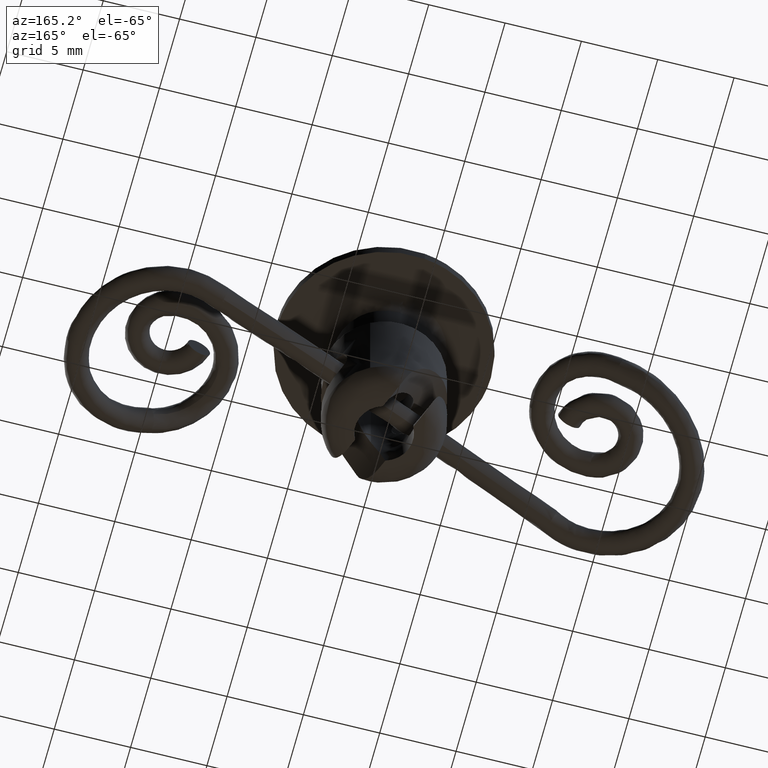
[diagram: clean part render]
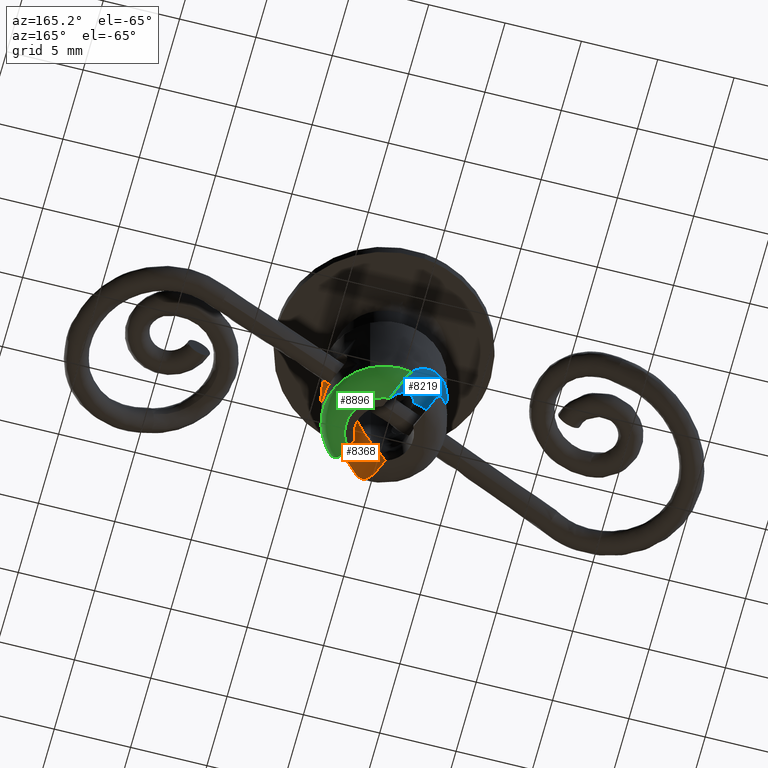
[diagram: same view with three faces highlighted in distinct colors, each labeled with its STEP entity id]
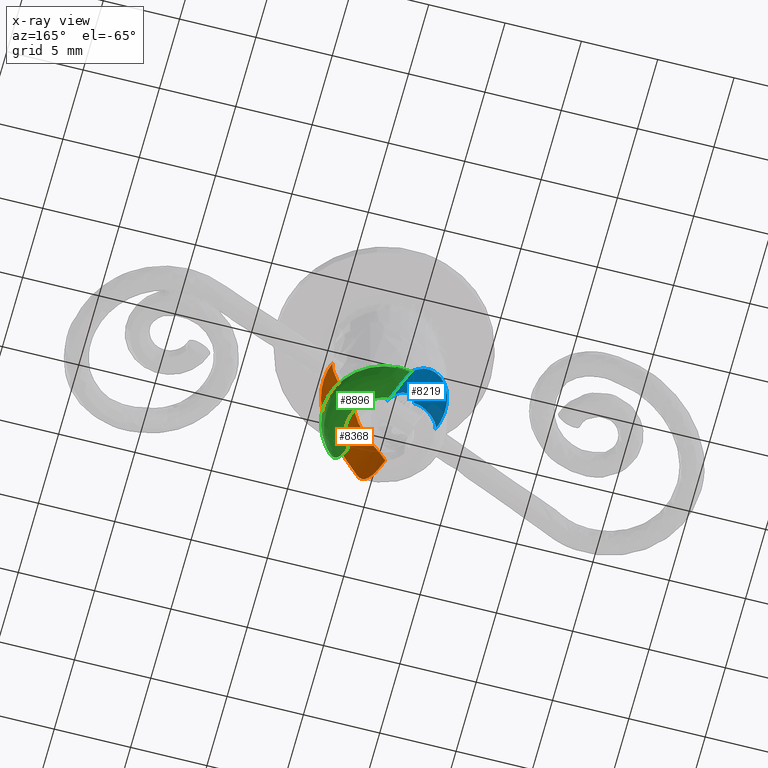
[diagram: x-ray of the same camera — body ghosted, the three highlighted faces saturated]
A machine part, auxiliary view with three faces highlighted in distinct colors.
The next image is the same camera in x-ray (body ghosted, the three faces saturated) — at least one of them is partly hidden behind the body in this view.
Their STEP definitions:

[orange] entity #8368 — the highlighted face is a freeform B-spline surface patch.
#6632=CARTESIAN_POINT('',(1.815549475939585,-0.560194706663198,0.320780988121058));
#6633=VERTEX_POINT('',#6632);
#6703=CARTESIAN_POINT('',(0.373404615151968,-1.862952903262541,-1.750947063984357));
#6704=VERTEX_POINT('',#6703);
#6705=CARTESIAN_POINT('',(0.373404615151968,-1.862952903262541,-1.750947063984357));
#6706=CARTESIAN_POINT('',(0.410200934372174,-1.855576477500964,-1.687561067883076));
#6707=CARTESIAN_POINT('',(0.447575255454538,-1.846951980060489,-1.624701134180892));
#6708=CARTESIAN_POINT('',(0.602233836290562,-1.806089019188280,-1.370353794984219));
#6709=CARTESIAN_POINT('',(0.723570279348594,-1.762281326212640,-1.184143658688647));
#6710=CARTESIAN_POINT('',(0.878421437886864,-1.685113295181263,-0.958845868583563));
#6711=CARTESIAN_POINT('',(0.909547453076765,-1.668547470391175,-0.914160319008975));
#6712=CARTESIAN_POINT('',(0.972033407115969,-1.632935699923791,-0.825539447999178));
#6713=CARTESIAN_POINT('',(1.003402691539201,-1.613876566399230,-0.781594082970423));
#6714=CARTESIAN_POINT('',(1.096858801722067,-1.553207821660352,-0.652074467764540));
#6715=CARTESIAN_POINT('',(1.158578830394650,-1.507969564234907,-0.568418792802705));
#6716=CARTESIAN_POINT('',(1.279757046826916,-1.406591642792462,-0.406532251312372));
#6717=CARTESIAN_POINT('',(1.339222189522544,-1.350461756500014,-0.328300192015638));
#6718=CARTESIAN_POINT('',(1.425650675667008,-1.256727913099598,-0.215109905519555));
#6719=CARTESIAN_POINT('',(1.453995360626599,-1.223888654347709,-0.178073474003708));
#6720=CARTESIAN_POINT('',(1.509519414778674,-1.154710921400465,-0.105414381891269));
#6721=CARTESIAN_POINT('',(1.536470144465346,-1.118646997013288,-0.070089518669324));
#6722=CARTESIAN_POINT('',(1.614187944442423,-1.006343106560047,0.032427730101275));
#6723=CARTESIAN_POINT('',(1.662005801738604,-0.925815268724424,0.096381491418650));
#6724=CARTESIAN_POINT('',(1.726082184871686,-0.795624758479897,0.185764113527868));
#6725=CARTESIAN_POINT('',(1.746160497700477,-0.750656739812167,0.214464845158779));
#6726=CARTESIAN_POINT('',(1.783384238724337,-0.657344907425173,0.269650137344403));
#6727=CARTESIAN_POINT('',(1.800449779252641,-0.609131938575875,0.296031945968916));
#6728=CARTESIAN_POINT('',(1.815549475939585,-0.560194706663198,0.320780988121058));
#6729=B_SPLINE_CURVE_WITH_KNOTS('',3,(#6705,#6706,#6707,#6708,#6709,#6710,#6711,#6712,#6713,#6714,#6715,#6716,#6717,#6718,#6719,#6720,#6721,#6722,#6723,#6724,#6725,#6726,#6727,#6728),.UNSPECIFIED.,.F.,.U.,(4,2,2,2,2,2,2,2,2,2,2,4),(0.459587832967357,0.500000000000000,0.625000000000000,0.656250000000000,0.687500000000000,0.750000000000000,0.812500000000000,0.843750000000000,0.875000000000000,0.937500000000000,0.968750000000000,1.0),.UNSPECIFIED.);
#6730=EDGE_CURVE('',#6704,#6633,#6729,.T.);
#6852=CARTESIAN_POINT('',(-0.560781567458374,-1.815360516719855,-4.045007214640295));
#6853=VERTEX_POINT('',#6852);
#6854=CARTESIAN_POINT('',(-0.560781567458374,-1.815360516719855,-4.045007214640295));
#6855=CARTESIAN_POINT('',(-0.510660560341418,-1.830843646060682,-3.823336900124407));
#6856=CARTESIAN_POINT('',(-0.449263708705881,-1.847540571197393,-3.606241212767296));
#6857=CARTESIAN_POINT('',(-0.307496974457455,-1.876350835866177,-3.179588734452622));
#6858=CARTESIAN_POINT('',(-0.227118611979119,-1.888474020270208,-2.970035597441536));
#6859=CARTESIAN_POINT('',(-0.049821271460768,-1.901430537816785,-2.557327236266299));
#6860=CARTESIAN_POINT('',(0.047110192401548,-1.902306268439871,-2.354178059606205));
#6861=CARTESIAN_POINT('',(0.203695955860363,-1.889781405926326,-2.053633692298498));
#6862=CARTESIAN_POINT('',(0.257761122578376,-1.883292629873229,-1.954150702000205));
#6863=CARTESIAN_POINT('',(0.333353928870187,-1.870642083247632,-1.820393214423585));
#6864=CARTESIAN_POINT('',(0.353292898260717,-1.866983713816775,-1.785591563333139));
#6865=CARTESIAN_POINT('',(0.373404615151968,-1.862952903262541,-1.750947063984357));
#6866=B_SPLINE_CURVE_WITH_KNOTS('',3,(#6854,#6855,#6856,#6857,#6858,#6859,#6860,#6861,#6862,#6863,#6864,#6865),.UNSPECIFIED.,.F.,.U.,(4,2,2,2,2,4),(0.0,0.125000000000000,0.250000000000000,0.375000000000000,0.437500000000000,0.459587832967357),.UNSPECIFIED.);
#6867=EDGE_CURVE('',#6853,#6704,#6866,.T.);
#7294=CARTESIAN_POINT('',(0.776940158445894,-3.923822135020584,-2.545006979020830));
#7295=VERTEX_POINT('',#7294);
#7309=CARTESIAN_POINT('',(3.708740166083640,1.498420013741502,1.554992785359265));
#7310=VERTEX_POINT('',#7309);
#7311=CARTESIAN_POINT('',(3.708740166083640,1.498420013741502,1.554992785359265));
#7312=CARTESIAN_POINT('',(3.777432133968332,1.328400487804730,1.554992685830768));
#7313=CARTESIAN_POINT('',(3.833669597298066,1.155709985717584,1.551749656028139));
#7314=CARTESIAN_POINT('',(3.922281490909782,0.805230438074339,1.538632275593365));
#7315=CARTESIAN_POINT('',(3.954651696555446,0.627440381408211,1.528759125127556));
#7316=CARTESIAN_POINT('',(3.980007781251230,0.402010790310453,1.511439411780648));
#7317=CARTESIAN_POINT('',(3.984320460195677,0.356764685135172,1.507723504697204));
#7318=CARTESIAN_POINT('',(3.991410950085425,0.265949614836478,1.499754028675773));
#7319=CARTESIAN_POINT('',(3.994189166865374,0.220313866152461,1.495492969520831));
#7320=CARTESIAN_POINT('',(4.000154990881589,0.083980825012362,1.481954784178219));
#7321=CARTESIAN_POINT('',(4.001008420459537,-0.006435805107484,1.471901743823646));
#7322=CARTESIAN_POINT('',(3.994505707220803,-0.276251487655931,1.438355855484182));
#7323=CARTESIAN_POINT('',(3.978119100812767,-0.454224507208988,1.411507386121907));
#7324=CARTESIAN_POINT('',(3.936022942663849,-0.718104019927858,1.362755738115888));
#7325=CARTESIAN_POINT('',(3.919062971033821,-0.805548484350855,1.345084540576716));
#7326=CARTESIAN_POINT('',(3.879284579151232,-0.979343701428593,1.306507361696533));
#7327=CARTESIAN_POINT('',(3.856367292814644,-1.065955059178533,1.285519566704118));
#7328=CARTESIAN_POINT('',(3.780090902293097,-1.319916603526942,1.218160717189466));
#7329=CARTESIAN_POINT('',(3.719036005736016,-1.482594703743343,1.167189988816244));
#7330=CARTESIAN_POINT('',(3.578783043866265,-1.794889353822130,1.050974374960082));
#7331=CARTESIAN_POINT('',(3.499573200274811,-1.944502078096190,0.985732975663590));
#7332=CARTESIAN_POINT('',(3.368388276469222,-2.158934405142499,0.875175582132127));
#7333=CARTESIAN_POINT('',(3.322823018613856,-2.228342089361999,0.836389883839767));
#7334=CARTESIAN_POINT('',(3.229277270338661,-2.361869935353428,0.755555491586644));
#7335=CARTESIAN_POINT('',(3.181168224092450,-2.426202104342434,0.713399130278431));
#7336=CARTESIAN_POINT('',(3.033378977196863,-2.612224185213528,0.581537113431160));
#7337=CARTESIAN_POINT('',(2.930246690048786,-2.726951350311304,0.486442934986329));
#7338=CARTESIAN_POINT('',(2.770557393611522,-2.886117838792055,0.332249448718776));
#7339=CARTESIAN_POINT('',(2.716324720383573,-2.937162139152223,0.278753561233183));
#7340=CARTESIAN_POINT('',(2.607384089300542,-3.034285686796572,0.168681698031064));
#7341=CARTESIAN_POINT('',(2.552751670089579,-3.080320185581897,0.112190858828936));
#7342=CARTESIAN_POINT('',(2.388784324098760,-3.211435056339058,-0.061639568470410));
#7343=CARTESIAN_POINT('',(2.279387206017922,-3.289544303938485,-0.183332986500841));
#7344=CARTESIAN_POINT('',(2.116616741856576,-3.394719815616321,-0.374627924153393));
#7345=CARTESIAN_POINT('',(2.062578430964468,-3.427775364450852,-0.439853047259654));
#7346=CARTESIAN_POINT('',(1.955161301642227,-3.490160170762467,-0.573243622916385));
#7347=CARTESIAN_POINT('',(1.901647024783787,-3.519556082145954,-0.641592052394144));
#7348=CARTESIAN_POINT('',(1.638585971377949,-3.656689269542281,-0.987653874922901));
#7349=CARTESIAN_POINT('',(1.441752941980856,-3.735945503561521,-1.279084164881094));
#7350=CARTESIAN_POINT('',(1.082037000019157,-3.855533203317219,-1.890382169543279));
#7351=CARTESIAN_POINT('',(0.919082755540981,-3.895677053997840,-2.210247791274913));
#7352=CARTESIAN_POINT('',(0.776940158445894,-3.923822135020584,-2.545006979020830));
#7353=B_SPLINE_CURVE_WITH_KNOTS('',3,(#7311,#7312,#7313,#7314,#7315,#7316,#7317,#7318,#7319,#7320,#7321,#7322,#7323,#7324,#7325,#7326,#7327,#7328,#7329,#7330,#7331,#7332,#7333,#7334,#7335,#7336,#7337,#7338,#7339,#7340,#7341,#7342,#7343,#7344,#7345,#7346,#7347,#7348,#7349,#7350,#7351,#7352),.UNSPECIFIED.,.F.,.U.,(4,2,2,2,2,2,2,2,2,2,2,2,2,2,2,2,2,2,2,2,4),(0.0,0.062500000000000,0.125000000000000,0.140625000000000,0.156250000000000,0.187499999999999,0.249999999999999,0.281249999999999,0.312499999999999,0.374999999999999,0.437499999999999,0.468749999999999,0.499999999999999,0.562499999999999,0.593749999999999,0.624999999999999,0.687499999999999,0.718749999999999,0.750000000000000,0.875000000000000,1.0),.UNSPECIFIED.);
#7354=EDGE_CURVE('',#7310,#7295,#7353,.T.);
#8277=CARTESIAN_POINT('',(5.523963946396832,-2.188269953454758,1.626875196792193));
#8278=CARTESIAN_POINT('',(3.950357112772462,1.706541849412089,1.626875196792193));
#8279=CARTESIAN_POINT('',(1.008060644342026,-4.012814156301638,0.579246693799024));
#8280=CARTESIAN_POINT('',(-0.565546189282342,-0.118002353434788,0.579246693799024));
#8281=CARTESIAN_POINT('',(0.376295699593651,-4.268063879425256,-4.355891632060521));
#8282=CARTESIAN_POINT('',(-1.197311134030718,-0.373252076558408,-4.355891632060519));
#8290=(BOUNDED_SURFACE()B_SPLINE_SURFACE(1,2,((#8277,#8279,#8281),(#8278,#8280,#8282)),.UNSPECIFIED.,.F.,.F.,.U.)B_SPLINE_SURFACE_WITH_KNOTS((2,2),(3,3),(0.0,4.200690115514381),(0.0,8.973363486855620),.UNSPECIFIED.)GEOMETRIC_REPRESENTATION_ITEM()RATIONAL_B_SPLINE_SURFACE(((1.0,0.819152044288992,1.0),(1.0,0.819152044288992,1.0)))REPRESENTATION_ITEM('')SURFACE());
#8291=CARTESIAN_POINT('',(-0.291036046533577,-2.483003803607885,-4.045007214640280));
#8292=VERTEX_POINT('',#8291);
#8293=CARTESIAN_POINT('',(0.776940158445894,-3.923822135020584,-2.545006979020830));
#8294=CARTESIAN_POINT('',(0.734675375865983,-3.932190809958709,-2.644544514386693));
#8295=CARTESIAN_POINT('',(0.691661907102517,-3.929999568226229,-2.742705013562885));
#8296=CARTESIAN_POINT('',(0.625719125046705,-3.911461692586977,-2.887803100105516));
#8297=CARTESIAN_POINT('',(0.603496580769239,-3.902723189569046,-2.935808269917404));
#8298=CARTESIAN_POINT('',(0.558459587356858,-3.880020449728832,-3.031037327149455));
#8299=CARTESIAN_POINT('',(0.535566696235596,-3.865975877999163,-3.078408728924531));
#8300=CARTESIAN_POINT('',(0.467276482033460,-3.816854406278383,-3.216230447105097));
#8301=CARTESIAN_POINT('',(0.421834528914309,-3.774693945245577,-3.303380087379476));
#8302=CARTESIAN_POINT('',(0.352956811534462,-3.697734524462422,-3.426763354047941));
#8303=CARTESIAN_POINT('',(0.329817428540429,-3.669702325664297,-3.466757772535679));
#8304=CARTESIAN_POINT('',(0.283387041297703,-3.609261558423844,-3.543714347883574));
#8305=CARTESIAN_POINT('',(0.260350436751771,-3.577197065444729,-3.580261561355879));
#8306=CARTESIAN_POINT('',(0.191525642283060,-3.475750533134515,-3.684243388677696));
#8307=CARTESIAN_POINT('',(0.146018475038047,-3.401156265076190,-3.746060908787799));
#8308=CARTESIAN_POINT('',(0.077447322885996,-3.279113108712178,-3.827237096741635));
#8309=CARTESIAN_POINT('',(0.054520186429124,-3.236673110346039,-3.852353120763507));
#8310=CARTESIAN_POINT('',(0.009374177409344,-3.150194995580677,-3.897684125600683));
#8311=CARTESIAN_POINT('',(-0.035303509119593,-3.061703660967648,-3.938414335824632));
#8312=CARTESIAN_POINT('',(-0.079282039150055,-2.969391011440006,-3.970172744595758));
#8313=CARTESIAN_POINT('',(-0.122997950579869,-2.875218036676909,-3.997465511525087));
#8314=CARTESIAN_POINT('',(-0.144785556515479,-2.827062695917082,-4.008903958581032));
#8315=CARTESIAN_POINT('',(-0.209435594888433,-2.680733145497004,-4.036249731891067));
#8316=CARTESIAN_POINT('',(-0.250930014781995,-2.582269670879942,-4.045007216279484));
#8317=CARTESIAN_POINT('',(-0.291036046533577,-2.483003803607885,-4.045007214640280));
#8318=B_SPLINE_CURVE_WITH_KNOTS('',3,(#8293,#8294,#8295,#8296,#8297,#8298,#8299,#8300,#8301,#8302,#8303,#8304,#8305,#8306,#8307,#8308,#8309,#8310,#8311,#8312,#8313,#8314,#8315,#8316,#8317),.UNSPECIFIED.,.F.,.U.,(4,2,2,2,2,2,2,2,2,1,2,2,4),(0.0,0.125000000000000,0.187500000000000,0.249999999999999,0.374999999999999,0.437499999999999,0.499999999999999,0.624999999999999,0.687499999999999,0.749999999999999,0.812499999999999,0.874999999999999,1.0),.UNSPECIFIED.);
#8319=EDGE_CURVE('',#7295,#8292,#8318,.T.);
#8320=ORIENTED_EDGE('',*,*,#8319,.T.);
#8321=CARTESIAN_POINT('',(-0.291036046533577,-2.483003803607885,-4.045007214640280));
#8322=CARTESIAN_POINT('',(-0.560781567458374,-1.815360516719855,-4.045007214640295));
#8323=QUASI_UNIFORM_CURVE('',1,(#8321,#8322),.UNSPECIFIED.,.F.,.U.);
#8324=EDGE_CURVE('',#8292,#6853,#8323,.T.);
#8325=ORIENTED_EDGE('',*,*,#8324,.T.);
#8326=ORIENTED_EDGE('',*,*,#6867,.T.);
#8327=ORIENTED_EDGE('',*,*,#6730,.T.);
#8328=CARTESIAN_POINT('',(1.815549475939585,-0.560194706663198,0.320780988121058));
#8329=CARTESIAN_POINT('',(1.916076615271872,-0.522109720628118,0.403047640701663));
#8330=CARTESIAN_POINT('',(2.014626928325532,-0.475682723948801,0.481449703406397));
#8331=CARTESIAN_POINT('',(2.209331709115173,-0.369553871410638,0.631103742716022));
#8332=CARTESIAN_POINT('',(2.305472021680491,-0.309822259902096,0.702351409719841));
#8333=CARTESIAN_POINT('',(2.448470473889061,-0.211578259142016,0.804100843098284));
#8334=CARTESIAN_POINT('',(2.495930136367032,-0.177379504519130,0.837162099595647));
#8335=CARTESIAN_POINT('',(2.590488479033953,-0.106201724230814,0.901599305536155));
#8336=CARTESIAN_POINT('',(2.637621784430453,-0.069187365647590,0.932994245692360));
#8337=CARTESIAN_POINT('',(2.777288418470608,0.044900056918743,1.023900414077487));
#8338=CARTESIAN_POINT('',(2.868535872556412,0.125282935460453,1.080433868583748));
#8339=CARTESIAN_POINT('',(3.047223634437084,0.294428338048702,1.185949232706495));
#8340=CARTESIAN_POINT('',(3.134694939576855,0.383159075422726,1.234931407417820));
#8341=CARTESIAN_POINT('',(3.262047463687537,0.523438838881032,1.302943461696151));
#8342=CARTESIAN_POINT('',(3.303844897807218,0.571408625407197,1.324701654721908));
#8343=CARTESIAN_POINT('',(3.385689336341291,0.670223995814406,1.366387322971562));
#8344=CARTESIAN_POINT('',(3.425758907884987,0.721093343056230,1.386320023758859));
#8345=CARTESIAN_POINT('',(3.502630292730986,0.825605147449196,1.423977558003986));
#8346=CARTESIAN_POINT('',(3.539573694134135,0.879369552860462,1.441763389620110));
#8347=CARTESIAN_POINT('',(3.608434407250822,0.990997776949750,1.474985793938839));
#8348=CARTESIAN_POINT('',(3.640174203929677,1.048390859189049,1.490309655238499));
#8349=CARTESIAN_POINT('',(3.680401141275691,1.138531914115095,1.510932587093588));
#8350=CARTESIAN_POINT('',(3.692558829445082,1.169264767150229,1.517409895619282));
#8351=CARTESIAN_POINT('',(3.713125894181110,1.232734749323954,1.529383987799397));
#8352=CARTESIAN_POINT('',(3.721500284982012,1.265462235616560,1.534868576229516));
#8353=CARTESIAN_POINT('',(3.729328805983009,1.315138832220654,1.541859787769527));
#8354=CARTESIAN_POINT('',(3.731160584690689,1.331848006258715,1.543993018982209));
#8355=CARTESIAN_POINT('',(3.732884664513822,1.365637583442835,1.547793326757609));
#8356=CARTESIAN_POINT('',(3.732757005722430,1.382705249734219,1.549454174066612));
#8357=CARTESIAN_POINT('',(3.730185602585084,1.416351792433105,1.552149085363329));
#8358=CARTESIAN_POINT('',(3.727750806199638,1.433035003812445,1.553195902285589));
#8359=CARTESIAN_POINT('',(3.720261857180866,1.466081187580370,1.554619249695834));
#8360=CARTESIAN_POINT('',(3.715163592151272,1.482521483616696,1.554992785360037));
#8361=CARTESIAN_POINT('',(3.708740166083640,1.498420013741502,1.554992785359265));
#8362=B_SPLINE_CURVE_WITH_KNOTS('',3,(#8328,#8329,#8330,#8331,#8332,#8333,#8334,#8335,#8336,#8337,#8338,#8339,#8340,#8341,#8342,#8343,#8344,#8345,#8346,#8347,#8348,#8349,#8350,#8351,#8352,#8353,#8354,#8355,#8356,#8357,#8358,#8359,#8360,#8361),.UNSPECIFIED.,.F.,.U.,(4,2,2,2,2,2,2,2,2,2,2,2,2,2,2,2,4),(0.0,0.125000000000000,0.250000000000000,0.312500000000000,0.375000000000000,0.500000000000000,0.625000000000000,0.687500000000000,0.750000000000000,0.812499999999999,0.874999999999999,0.906249999999999,0.937499999999999,0.953125000000000,0.968750000000000,0.984375000000000,1.0),.UNSPECIFIED.);
#8363=EDGE_CURVE('',#6633,#7310,#8362,.T.);
#8364=ORIENTED_EDGE('',*,*,#8363,.T.);
#8365=ORIENTED_EDGE('',*,*,#7354,.T.);
#8366=EDGE_LOOP('',(#8320,#8325,#8326,#8327,#8364,#8365));
#8367=FACE_OUTER_BOUND('',#8366,.T.);
#8368=ADVANCED_FACE('',(#8367),#8290,.F.);

[blue] entity #8219 — the highlighted face is a freeform B-spline surface patch.
#6531=CARTESIAN_POINT('',(0.560784052494967,1.815354366040405,-4.045007214640280));
#6532=VERTEX_POINT('',#6531);
#6533=CARTESIAN_POINT('',(-1.007489860918720,1.610877935495392,-0.776039488127340));
#6534=VERTEX_POINT('',#6533);
#6535=CARTESIAN_POINT('',(0.560784052494967,1.815354366040405,-4.045007214640280));
#6536=CARTESIAN_POINT('',(0.510663392514391,1.830836931097884,-3.823337502255511));
#6537=CARTESIAN_POINT('',(0.449266971216704,1.847533214469127,-3.606242363336114));
#6538=CARTESIAN_POINT('',(0.307501199894751,1.876342185133471,-3.179590929888382));
#6539=CARTESIAN_POINT('',(0.227123370678435,1.888464716230565,-2.970038288967682));
#6540=CARTESIAN_POINT('',(0.049827180841326,1.901419996200158,-2.557330900803386));
#6541=CARTESIAN_POINT('',(-0.047103665182743,1.902295141208813,-2.354182200717029));
#6542=CARTESIAN_POINT('',(-0.203688431958264,1.889769492633588,-2.053638550109559));
#6543=CARTESIAN_POINT('',(-0.257753254620216,1.883280469877535,-1.954155798961995));
#6544=CARTESIAN_POINT('',(-0.369460104142425,1.864585620582211,-1.756495631476557));
#6545=CARTESIAN_POINT('',(-0.426914444568065,1.852395669836901,-1.658670443020126));
#6546=CARTESIAN_POINT('',(-0.602223830900223,1.806075628729674,-1.370360198994442));
#6547=CARTESIAN_POINT('',(-0.723559519908811,1.762267649219631,-1.184150474758325));
#6548=CARTESIAN_POINT('',(-0.878409683308163,1.685099427343547,-0.958853199302305));
#6549=CARTESIAN_POINT('',(-0.909535496845027,1.668533572943647,-0.914167752640298));
#6550=CARTESIAN_POINT('',(-0.962992793642667,1.638067149140840,-0.838351479183576));
#6551=CARTESIAN_POINT('',(-0.985271180011332,1.624773035653436,-0.807030093910569));
#6552=CARTESIAN_POINT('',(-1.007489860918720,1.610877935495392,-0.776039488127340));
#6553=B_SPLINE_CURVE_WITH_KNOTS('',3,(#6535,#6536,#6537,#6538,#6539,#6540,#6541,#6542,#6543,#6544,#6545,#6546,#6547,#6548,#6549,#6550,#6551,#6552),.UNSPECIFIED.,.F.,.U.,(4,2,2,2,2,2,2,2,4),(0.0,0.125000000000000,0.250000000000000,0.375000000000001,0.437500000000001,0.500000000000001,0.625000000000001,0.656250000000001,0.678469662991139),.UNSPECIFIED.);
#6554=EDGE_CURVE('',#6532,#6534,#6553,.T.);
#6797=CARTESIAN_POINT('',(-1.815531978888005,0.560183563568359,0.320771765347629));
#6798=VERTEX_POINT('',#6797);
#6799=CARTESIAN_POINT('',(-1.007489860918720,1.610877935495392,-0.776039488127340));
#6800=CARTESIAN_POINT('',(-1.016519891894801,1.605230174699714,-0.763444702174147));
#6801=CARTESIAN_POINT('',(-1.025540006016938,1.599483519969252,-0.750904452052641));
#6802=CARTESIAN_POINT('',(-1.096845669529674,1.553193834845306,-0.652082430081344));
#6803=CARTESIAN_POINT('',(-1.158565313211683,1.507955593198140,-0.568426910603239));
#6804=CARTESIAN_POINT('',(-1.279742760039873,1.406577793295947,-0.406540671633178));
#6805=CARTESIAN_POINT('',(-1.339207518002900,1.350448012533805,-0.328308759375744));
#6806=CARTESIAN_POINT('',(-1.425635434048165,1.256714415697933,-0.215118687168672));
#6807=CARTESIAN_POINT('',(-1.453979930187831,1.223875253949939,-0.178082326033071));
#6808=CARTESIAN_POINT('',(-1.509503611165578,1.154697750007190,-0.105423372536732));
#6809=CARTESIAN_POINT('',(-1.536454206090730,1.118633892781873,-0.070098514009723));
#6810=CARTESIAN_POINT('',(-1.614171553453762,1.006330321669807,0.032418641831234));
#6811=CARTESIAN_POINT('',(-1.661989128194589,0.925802749136480,0.096372347096199));
#6812=CARTESIAN_POINT('',(-1.726065135881711,0.795612738057472,0.185754896339244));
#6813=CARTESIAN_POINT('',(-1.746143331738731,0.750644902764120,0.214455605569630));
#6814=CARTESIAN_POINT('',(-1.783366860591273,0.657333477066527,0.269640857527825));
#6815=CARTESIAN_POINT('',(-1.800432340530039,0.609120637453361,0.296022700551556));
#6816=CARTESIAN_POINT('',(-1.815531978888005,0.560183563568359,0.320771765347629));
#6817=B_SPLINE_CURVE_WITH_KNOTS('',3,(#6799,#6800,#6801,#6802,#6803,#6804,#6805,#6806,#6807,#6808,#6809,#6810,#6811,#6812,#6813,#6814,#6815,#6816),.UNSPECIFIED.,.F.,.U.,(4,2,2,2,2,2,2,2,4),(0.678469662991139,0.687500000000001,0.750000000000000,0.812500000000000,0.843750000000000,0.875000000000000,0.937500000000000,0.968750000000000,1.0),.UNSPECIFIED.);
#6818=EDGE_CURVE('',#6534,#6798,#6817,.T.);
#7080=CARTESIAN_POINT('',(-0.776940158445796,3.923822135020604,-2.545006979021060));
#7081=VERTEX_POINT('',#7080);
#7095=CARTESIAN_POINT('',(-3.708740166083640,-1.498420013741502,1.554992785359265));
#7096=VERTEX_POINT('',#7095);
#7097=CARTESIAN_POINT('',(-3.708740166083640,-1.498420013741502,1.554992785359265));
#7098=CARTESIAN_POINT('',(-3.777432133968334,-1.328400487804726,1.554992685830769));
#7099=CARTESIAN_POINT('',(-3.833669597298069,-1.155709985717574,1.551749656028139));
#7100=CARTESIAN_POINT('',(-3.922281490909786,-0.805230438074318,1.538632275593365));
#7101=CARTESIAN_POINT('',(-3.954651696555450,-0.627440381408185,1.528759125127554));
#7102=CARTESIAN_POINT('',(-3.980007781251235,-0.402010790310420,1.511439411780645));
#7103=CARTESIAN_POINT('',(-3.984320460195681,-0.356764685135137,1.507723504697201));
#7104=CARTESIAN_POINT('',(-3.991410950085425,-0.265949614836440,1.499754028675769));
#7105=CARTESIAN_POINT('',(-3.994189166865375,-0.220313866152423,1.495492969520827));
#7106=CARTESIAN_POINT('',(-4.000154990881589,-0.083980825012319,1.481954784178215));
#7107=CARTESIAN_POINT('',(-4.001008420459534,0.006435805107529,1.471901743823641));
#7108=CARTESIAN_POINT('',(-3.994505707220799,0.276251487655983,1.438355855484176));
#7109=CARTESIAN_POINT('',(-3.978119100812759,0.454224507209045,1.411507386121897));
#7110=CARTESIAN_POINT('',(-3.936022942663837,0.718104019927922,1.362755738115875));
#7111=CARTESIAN_POINT('',(-3.919062971033808,0.805548484350922,1.345084540576703));
#7112=CARTESIAN_POINT('',(-3.879284579151213,0.979343701428664,1.306507361696516));
#7113=CARTESIAN_POINT('',(-3.856367292814625,1.065955059178606,1.285519566704100));
#7114=CARTESIAN_POINT('',(-3.780090902293070,1.319916603527020,1.218160717189444));
#7115=CARTESIAN_POINT('',(-3.719036005735983,1.482594703743424,1.167189988816216));
#7116=CARTESIAN_POINT('',(-3.578783043866221,1.794889353822215,1.050974374960048));
#7117=CARTESIAN_POINT('',(-3.499573200274763,1.944502078096277,0.985732975663548));
#7118=CARTESIAN_POINT('',(-3.368388276469164,2.158934405142589,0.875175582132079));
#7119=CARTESIAN_POINT('',(-3.322823018613797,2.228342089362088,0.836389883839716));
#7120=CARTESIAN_POINT('',(-3.229277270338594,2.361869935353515,0.755555491586588));
#7121=CARTESIAN_POINT('',(-3.181168224092384,2.426202104342521,0.713399130278370));
#7122=CARTESIAN_POINT('',(-3.033378977196787,2.612224185213614,0.581537113431093));
#7123=CARTESIAN_POINT('',(-2.930246690048707,2.726951350311390,0.486442934986254));
#7124=CARTESIAN_POINT('',(-2.770557393611434,2.886117838792142,0.332249448718693));
#7125=CARTESIAN_POINT('',(-2.716324720383486,2.937162139152308,0.278753561233094));
#7126=CARTESIAN_POINT('',(-2.607384089300450,3.034285686796655,0.168681698030970));
#7127=CARTESIAN_POINT('',(-2.552751670089484,3.080320185581976,0.112190858828837));
#7128=CARTESIAN_POINT('',(-2.388784324098656,3.211435056339133,-0.061639568470517));
#7129=CARTESIAN_POINT('',(-2.279387206017946,3.289544303938469,-0.183332986501123));
#7130=CARTESIAN_POINT('',(-2.116616741856600,3.394719815616306,-0.374627924153687));
#7131=CARTESIAN_POINT('',(-2.062578430964360,3.427775364450919,-0.439853047259786));
#7132=CARTESIAN_POINT('',(-1.955161301642117,3.490160170762531,-0.573243622916523));
#7133=CARTESIAN_POINT('',(-1.901647024783677,3.519556082146015,-0.641592052394288));
#7134=CARTESIAN_POINT('',(-1.638585971377835,3.656689269542334,-0.987653874923059));
#7135=CARTESIAN_POINT('',(-1.441752941980747,3.735945503561562,-1.279084164881269));
#7136=CARTESIAN_POINT('',(-1.082037000019047,3.855533203317251,-1.890382169543479));
#7137=CARTESIAN_POINT('',(-0.919082755540878,3.895677053997866,-2.210247791275130));
#7138=CARTESIAN_POINT('',(-0.776940158445796,3.923822135020604,-2.545006979021060));
#7139=B_SPLINE_CURVE_WITH_KNOTS('',3,(#7097,#7098,#7099,#7100,#7101,#7102,#7103,#7104,#7105,#7106,#7107,#7108,#7109,#7110,#7111,#7112,#7113,#7114,#7115,#7116,#7117,#7118,#7119,#7120,#7121,#7122,#7123,#7124,#7125,#7126,#7127,#7128,#7129,#7130,#7131,#7132,#7133,#7134,#7135,#7136,#7137,#7138),.UNSPECIFIED.,.F.,.U.,(4,2,2,2,2,2,2,2,2,2,2,2,2,2,2,2,2,2,2,2,4),(0.0,0.062500000000000,0.125000000000000,0.140625000000000,0.156250000000000,0.187500000000000,0.250000000000000,0.281250000000000,0.312500000000000,0.375000000000000,0.437500000000001,0.468750000000001,0.500000000000001,0.562500000000001,0.593750000000000,0.625000000000000,0.687500000000000,0.718750000000000,0.750000000000000,0.875000000000000,1.0),.UNSPECIFIED.);
#7140=EDGE_CURVE('',#7096,#7081,#7139,.T.);
#8128=CARTESIAN_POINT('',(-5.299728948618529,2.278866814793166,1.570422333571017));
#8129=CARTESIAN_POINT('',(-3.726122114994412,-1.615944988074259,1.570422333571017));
#8130=CARTESIAN_POINT('',(-0.984873603459940,4.022182333207246,0.398117216656625));
#8131=CARTESIAN_POINT('',(0.588733230164177,0.127370530339820,0.398117216656626));
#8132=CARTESIAN_POINT('',(-0.376295699593632,4.268063879425117,-4.355891632061040));
#8133=CARTESIAN_POINT('',(1.197311134030486,0.373252076557694,-4.355891632061039));
#8141=(BOUNDED_SURFACE()B_SPLINE_SURFACE(1,2,((#8128,#8130,#8132),(#8129,#8131,#8133)),.UNSPECIFIED.,.F.,.F.,.U.)B_SPLINE_SURFACE_WITH_KNOTS((2,2),(3,3),(0.0,4.200690115514821),(0.0,8.701056364874271),.UNSPECIFIED.)GEOMETRIC_REPRESENTATION_ITEM()RATIONAL_B_SPLINE_SURFACE(((1.0,0.829037572555042,1.0),(1.0,0.829037572555042,1.0)))REPRESENTATION_ITEM('')SURFACE());
#8142=CARTESIAN_POINT('',(0.291036046533577,2.483003803607885,-4.045007214640280));
#8143=VERTEX_POINT('',#8142);
#8144=CARTESIAN_POINT('',(-0.776940158445796,3.923822135020604,-2.545006979021060));
#8145=CARTESIAN_POINT('',(-0.734675375865887,3.932190809958710,-2.644544514386912));
#8146=CARTESIAN_POINT('',(-0.691661907102425,3.929999568226215,-2.742705013563092));
#8147=CARTESIAN_POINT('',(-0.625719125046618,3.911461692586946,-2.887803100105708));
#8148=CARTESIAN_POINT('',(-0.603496580769152,3.902723189569009,-2.935808269917588));
#8149=CARTESIAN_POINT('',(-0.558459587356774,3.880020449728782,-3.031037327149627));
#8150=CARTESIAN_POINT('',(-0.535566696235514,3.865975877999111,-3.078408728924696));
#8151=CARTESIAN_POINT('',(-0.467276482033385,3.816854406278318,-3.216230447105241));
#8152=CARTESIAN_POINT('',(-0.421834528914239,3.774693945245506,-3.303380087379608));
#8153=CARTESIAN_POINT('',(-0.352956811534397,3.697734524462345,-3.426763354048052));
#8154=CARTESIAN_POINT('',(-0.329817428540365,3.669702325664219,-3.466757772535786));
#8155=CARTESIAN_POINT('',(-0.283387041297645,3.609261558423766,-3.543714347883666));
#8156=CARTESIAN_POINT('',(-0.260350436751715,3.577197065444651,-3.580261561355964));
#8157=CARTESIAN_POINT('',(-0.191525642283012,3.475750533134439,-3.684243388677764));
#8158=CARTESIAN_POINT('',(-0.146018475038002,3.401156265076117,-3.746060908787857));
#8159=CARTESIAN_POINT('',(-0.077447322885958,3.279113108712109,-3.827237096741677));
#8160=CARTESIAN_POINT('',(-0.054520186429089,3.236673110345972,-3.852353120763542));
#8161=CARTESIAN_POINT('',(-0.009374177409313,3.150194995580617,-3.897684125600710));
#8162=CARTESIAN_POINT('',(0.035303312446757,3.061703427187194,-3.938413980756154));
#8163=CARTESIAN_POINT('',(0.079282039150077,2.969391011439961,-3.970172744595772));
#8164=CARTESIAN_POINT('',(0.122997950579886,2.875218036676872,-3.997465511525096));
#8165=CARTESIAN_POINT('',(0.144785556515494,2.827062695917049,-4.008903958581040));
#8166=CARTESIAN_POINT('',(0.209435594888441,2.680733145496984,-4.036249731891064));
#8167=CARTESIAN_POINT('',(0.250930014781999,2.582269670879931,-4.045007216279482));
#8168=CARTESIAN_POINT('',(0.291036046533577,2.483003803607885,-4.045007214640280));
#8169=B_SPLINE_CURVE_WITH_KNOTS('',3,(#8144,#8145,#8146,#8147,#8148,#8149,#8150,#8151,#8152,#8153,#8154,#8155,#8156,#8157,#8158,#8159,#8160,#8161,#8162,#8163,#8164,#8165,#8166,#8167,#8168),.UNSPECIFIED.,.F.,.U.,(4,2,2,2,2,2,2,2,2,1,2,2,4),(0.0,0.125000000000000,0.187500000000001,0.250000000000001,0.375000000000001,0.437500000000001,0.500000000000001,0.625000000000001,0.687500000000001,0.750000000000000,0.812500000000000,0.875000000000000,1.0),.UNSPECIFIED.);
#8170=EDGE_CURVE('',#7081,#8143,#8169,.T.);
#8171=ORIENTED_EDGE('',*,*,#8170,.T.);
#8172=CARTESIAN_POINT('',(0.291036046533577,2.483003803607885,-4.045007214640280));
#8173=CARTESIAN_POINT('',(0.560784052494967,1.815354366040405,-4.045007214640280));
#8174=QUASI_UNIFORM_CURVE('',1,(#8172,#8173),.UNSPECIFIED.,.F.,.U.);
#8175=EDGE_CURVE('',#8143,#6532,#8174,.T.);
#8176=ORIENTED_EDGE('',*,*,#8175,.T.);
#8177=ORIENTED_EDGE('',*,*,#6554,.T.);
#8178=ORIENTED_EDGE('',*,*,#6818,.T.);
#8179=CARTESIAN_POINT('',(-1.815531978888005,0.560183563568359,0.320771765347629));
#8180=CARTESIAN_POINT('',(-1.916059148570308,0.522099253869503,0.403038609022621));
#8181=CARTESIAN_POINT('',(-2.014609494706656,0.475672854253966,0.481440888277462));
#8182=CARTESIAN_POINT('',(-2.209314361272549,0.369545085580431,0.631095396710989));
#8183=CARTESIAN_POINT('',(-2.305454726274806,0.309813960177171,0.702343316379889));
#8184=CARTESIAN_POINT('',(-2.448453279706853,0.211570626635088,0.804093148478691));
#8185=CARTESIAN_POINT('',(-2.495912979690630,0.177372084017842,0.837154541200494));
#8186=CARTESIAN_POINT('',(-2.590471406502495,0.106194710050090,0.901592025296987));
#8187=CARTESIAN_POINT('',(-2.637604740492274,0.069180559841377,0.932987095314637));
#8188=CARTESIAN_POINT('',(-2.777271465413714,-0.044906250554735,1.023893652664863));
#8189=CARTESIAN_POINT('',(-2.868519003434775,-0.125288751896083,1.080427377157813));
#8190=CARTESIAN_POINT('',(-3.047207008288868,-0.294433429789682,1.185943299384510));
#8191=CARTESIAN_POINT('',(-3.134678470719733,-0.383163821214438,1.234925762042433));
#8192=CARTESIAN_POINT('',(-3.262031339169738,-0.523443042449324,1.302938263953275));
#8193=CARTESIAN_POINT('',(-3.303828906505388,-0.571412644087681,1.324696608857801));
#8194=CARTESIAN_POINT('',(-3.385673670281950,-0.670227617749076,1.366382588159913));
#8195=CARTESIAN_POINT('',(-3.425743397989635,-0.721096709130730,1.386315430466359));
#8196=CARTESIAN_POINT('',(-3.502615217627157,-0.825607957064335,1.423973269470622));
#8197=CARTESIAN_POINT('',(-3.539558892302428,-0.879372059381714,1.441759262453841));
#8198=CARTESIAN_POINT('',(-3.608420403402861,-0.990999589344840,1.474982032252623));
#8199=CARTESIAN_POINT('',(-3.640160713690851,-1.048392290952832,1.490306095361877));
#8200=CARTESIAN_POINT('',(-3.680388860753030,-1.138532615649095,1.510929401945937));
#8201=CARTESIAN_POINT('',(-3.692547026843226,-1.169265198153797,1.517406847615969));
#8202=CARTESIAN_POINT('',(-3.713115322240427,-1.232734530964461,1.529381260357547));
#8203=CARTESIAN_POINT('',(-3.721490527994651,-1.265461850211257,1.534866069753795));
#8204=CARTESIAN_POINT('',(-3.729320558826331,-1.315138128818944,1.541857661138027));
#8205=CARTESIAN_POINT('',(-3.731152893419312,-1.331847188560287,1.543991028691941));
#8206=CARTESIAN_POINT('',(-3.732878231714922,-1.365636513405775,1.547791637641321));
#8207=CARTESIAN_POINT('',(-3.732751279924620,-1.382704282810050,1.549452674733223));
#8208=CARTESIAN_POINT('',(-3.730181363586226,-1.416351000462789,1.552147974679954));
#8209=CARTESIAN_POINT('',(-3.727747359182234,-1.433034300881352,1.553194995336744));
#8210=CARTESIAN_POINT('',(-3.720260112007738,-1.466080667010371,1.554618776042818));
#8211=CARTESIAN_POINT('',(-3.715162748600657,-1.482521142789428,1.554992547712093));
#8212=CARTESIAN_POINT('',(-3.708740166083640,-1.498420013741502,1.554992785359265));
#8213=B_SPLINE_CURVE_WITH_KNOTS('',3,(#8179,#8180,#8181,#8182,#8183,#8184,#8185,#8186,#8187,#8188,#8189,#8190,#8191,#8192,#8193,#8194,#8195,#8196,#8197,#8198,#8199,#8200,#8201,#8202,#8203,#8204,#8205,#8206,#8207,#8208,#8209,#8210,#8211,#8212),.UNSPECIFIED.,.F.,.U.,(4,2,2,2,2,2,2,2,2,2,2,2,2,2,2,2,4),(0.0,0.125000000000000,0.250000000000000,0.312500000000000,0.375000000000000,0.500000000000000,0.625000000000000,0.687500000000000,0.750000000000000,0.812500000000000,0.875000000000000,0.906250000000000,0.937500000000000,0.953125000000000,0.968750000000000,0.984375000000000,1.0),.UNSPECIFIED.);
#8214=EDGE_CURVE('',#6798,#7096,#8213,.T.);
#8215=ORIENTED_EDGE('',*,*,#8214,.T.);
#8216=ORIENTED_EDGE('',*,*,#7140,.T.);
#8217=EDGE_LOOP('',(#8171,#8176,#8177,#8178,#8215,#8216));
#8218=FACE_OUTER_BOUND('',#8217,.T.);
#8219=ADVANCED_FACE('',(#8218),#8141,.F.);

[green] entity #8896 — the highlighted face is a freeform B-spline surface patch.
#7073=CARTESIAN_POINT('',(1.847002771453304,3.548041270249395,-2.545006979020885));
#7074=VERTEX_POINT('',#7073);
#7080=CARTESIAN_POINT('',(-0.776940158445796,3.923822135020604,-2.545006979021060));
#7081=VERTEX_POINT('',#7080);
#7082=CARTESIAN_POINT('',(-0.776940158445796,3.923822135020604,-2.545006979021060));
#7083=CARTESIAN_POINT('',(0.601014371730484,4.196665331338252,-2.545006979020949));
#7084=CARTESIAN_POINT('',(1.847002771453303,3.548041270249394,-2.545006979020885));
#7092=(BOUNDED_CURVE()B_SPLINE_CURVE(2,(#7082,#7083,#7084),.UNSPECIFIED.,.F.,.U.)B_SPLINE_CURVE_WITH_KNOTS((3,3),(0.0,0.267836110113847),.UNSPECIFIED.)CURVE()GEOMETRIC_REPRESENTATION_ITEM()RATIONAL_B_SPLINE_CURVE((1.0,0.897470111255206,0.904785048797656))REPRESENTATION_ITEM(''));
#7093=EDGE_CURVE('',#7081,#7074,#7092,.T.);
#7407=CARTESIAN_POINT('',(2.927125226555355,-2.726161020201685,-2.545006979020935));
#7408=VERTEX_POINT('',#7407);
#7441=CARTESIAN_POINT('',(1.847002771453303,3.548041270249395,-2.545006979020885));
#7442=CARTESIAN_POINT('',(2.910855863556750,2.994231351981798,-2.545006979020830));
#7443=CARTESIAN_POINT('',(3.494480345920268,1.946438571335084,-2.545006979020830));
#7444=CARTESIAN_POINT('',(4.910781607454383,-0.596275591454194,-2.545006979020830));
#7445=CARTESIAN_POINT('',(2.927125226555355,-2.726161020201685,-2.545006979020935));
#7453=(BOUNDED_CURVE()B_SPLINE_CURVE(2,(#7441,#7442,#7443,#7444,#7445),.UNSPECIFIED.,.F.,.U.)B_SPLINE_CURVE_WITH_KNOTS((3,2,3),(0.267836110113847,0.500000000000000,1.0),.UNSPECIFIED.)CURVE()GEOMETRIC_REPRESENTATION_ITEM()RATIONAL_B_SPLINE_CURVE((0.904785048797656,0.911125733604524,1.0,0.808595844859730,1.0))REPRESENTATION_ITEM(''));
#7454=EDGE_CURVE('',#7074,#7408,#7453,.T.);
#8142=CARTESIAN_POINT('',(0.291036046533577,2.483003803607885,-4.045007214640280));
#8143=VERTEX_POINT('',#8142);
#8144=CARTESIAN_POINT('',(-0.776940158445796,3.923822135020604,-2.545006979021060));
#8145=CARTESIAN_POINT('',(-0.734675375865887,3.932190809958710,-2.644544514386912));
#8146=CARTESIAN_POINT('',(-0.691661907102425,3.929999568226215,-2.742705013563092));
#8147=CARTESIAN_POINT('',(-0.625719125046618,3.911461692586946,-2.887803100105708));
#8148=CARTESIAN_POINT('',(-0.603496580769152,3.902723189569009,-2.935808269917588));
#8149=CARTESIAN_POINT('',(-0.558459587356774,3.880020449728782,-3.031037327149627));
#8150=CARTESIAN_POINT('',(-0.535566696235514,3.865975877999111,-3.078408728924696));
#8151=CARTESIAN_POINT('',(-0.467276482033385,3.816854406278318,-3.216230447105241));
#8152=CARTESIAN_POINT('',(-0.421834528914239,3.774693945245506,-3.303380087379608));
#8153=CARTESIAN_POINT('',(-0.352956811534397,3.697734524462345,-3.426763354048052));
#8154=CARTESIAN_POINT('',(-0.329817428540365,3.669702325664219,-3.466757772535786));
#8155=CARTESIAN_POINT('',(-0.283387041297645,3.609261558423766,-3.543714347883666));
#8156=CARTESIAN_POINT('',(-0.260350436751715,3.577197065444651,-3.580261561355964));
#8157=CARTESIAN_POINT('',(-0.191525642283012,3.475750533134439,-3.684243388677764));
#8158=CARTESIAN_POINT('',(-0.146018475038002,3.401156265076117,-3.746060908787857));
#8159=CARTESIAN_POINT('',(-0.077447322885958,3.279113108712109,-3.827237096741677));
#8160=CARTESIAN_POINT('',(-0.054520186429089,3.236673110345972,-3.852353120763542));
#8161=CARTESIAN_POINT('',(-0.009374177409313,3.150194995580617,-3.897684125600710));
#8162=CARTESIAN_POINT('',(0.035303312446757,3.061703427187194,-3.938413980756154));
#8163=CARTESIAN_POINT('',(0.079282039150077,2.969391011439961,-3.970172744595772));
#8164=CARTESIAN_POINT('',(0.122997950579886,2.875218036676872,-3.997465511525096));
#8165=CARTESIAN_POINT('',(0.144785556515494,2.827062695917049,-4.008903958581040));
#8166=CARTESIAN_POINT('',(0.209435594888441,2.680733145496984,-4.036249731891064));
#8167=CARTESIAN_POINT('',(0.250930014781999,2.582269670879931,-4.045007216279482));
#8168=CARTESIAN_POINT('',(0.291036046533577,2.483003803607885,-4.045007214640280));
#8169=B_SPLINE_CURVE_WITH_KNOTS('',3,(#8144,#8145,#8146,#8147,#8148,#8149,#8150,#8151,#8152,#8153,#8154,#8155,#8156,#8157,#8158,#8159,#8160,#8161,#8162,#8163,#8164,#8165,#8166,#8167,#8168),.UNSPECIFIED.,.F.,.U.,(4,2,2,2,2,2,2,2,2,1,2,2,4),(0.0,0.125000000000000,0.187500000000001,0.250000000000001,0.375000000000001,0.437500000000001,0.500000000000001,0.625000000000001,0.687500000000001,0.750000000000000,0.812500000000000,0.875000000000000,1.0),.UNSPECIFIED.);
#8170=EDGE_CURVE('',#7081,#8143,#8169,.T.);
#8386=CARTESIAN_POINT('',(1.934202547952070,-1.583941404405210,-4.045007214640280));
#8387=VERTEX_POINT('',#8386);
#8393=CARTESIAN_POINT('',(2.927125226555355,-2.726161020201685,-2.545006979020935));
#8394=CARTESIAN_POINT('',(2.888183538280924,-2.767973390136599,-2.632488028073248));
#8395=CARTESIAN_POINT('',(2.848063855043902,-2.798200321006740,-2.722758173699704));
#8396=CARTESIAN_POINT('',(2.785583023006255,-2.824187004154409,-2.862673958827872));
#8397=CARTESIAN_POINT('',(2.764203733108920,-2.829586819449439,-2.910421223541865));
#8398=CARTESIAN_POINT('',(2.721592041181387,-2.833199707152740,-3.004960798580552));
#8399=CARTESIAN_POINT('',(2.678997166368613,-2.829789822069261,-3.098840927161172));
#8400=CARTESIAN_POINT('',(2.636063302823671,-2.812381386179560,-3.191235406648701));
#8401=CARTESIAN_POINT('',(2.603547535527951,-2.793914662734066,-3.259872357710808));
#8402=CARTESIAN_POINT('',(2.592645544763321,-2.786839836119134,-3.282659806769869));
#8403=CARTESIAN_POINT('',(2.571043946321639,-2.771116599623887,-3.327282043773828));
#8404=CARTESIAN_POINT('',(2.560301170498071,-2.762446565019765,-3.349208745341104));
#8405=CARTESIAN_POINT('',(2.528187468788217,-2.734093351788368,-3.413847268050732));
#8406=CARTESIAN_POINT('',(2.506931329869687,-2.712073918934727,-3.455421101098267));
#8407=CARTESIAN_POINT('',(2.464411875119858,-2.662056470747932,-3.535502682382943));
#8408=CARTESIAN_POINT('',(2.443008929023193,-2.633841841101215,-3.574243070902260));
#8409=CARTESIAN_POINT('',(2.379614726692283,-2.542267065628023,-3.683438847998562));
#8410=CARTESIAN_POINT('',(2.338329328977583,-2.472156427952783,-3.747218288822436));
#8411=CARTESIAN_POINT('',(2.276007872687046,-2.355254178465020,-3.830135313116593));
#8412=CARTESIAN_POINT('',(2.255301227490665,-2.314533982554836,-3.855438052073405));
#8413=CARTESIAN_POINT('',(2.214344742652014,-2.231056923407444,-3.900939514271083));
#8414=CARTESIAN_POINT('',(2.194004633061241,-2.188129497531847,-3.921259986654746));
#8415=CARTESIAN_POINT('',(2.133074257868781,-2.056088552654291,-3.975264224235340));
#8416=CARTESIAN_POINT('',(2.092271045988829,-1.963047596401875,-4.002046648690780));
#8417=CARTESIAN_POINT('',(2.012431955531827,-1.775429869813989,-4.036745632852173));
#8418=CARTESIAN_POINT('',(1.973120797000165,-1.680267407300586,-4.045007216231119));
#8419=CARTESIAN_POINT('',(1.934202547952070,-1.583941404405210,-4.045007214640280));
#8420=B_SPLINE_CURVE_WITH_KNOTS('',3,(#8393,#8394,#8395,#8396,#8397,#8398,#8399,#8400,#8401,#8402,#8403,#8404,#8405,#8406,#8407,#8408,#8409,#8410,#8411,#8412,#8413,#8414,#8415,#8416,#8417,#8418,#8419),.UNSPECIFIED.,.F.,.U.,(4,2,2,1,2,2,2,2,2,2,2,2,2,4),(0.0,0.125000000000001,0.187500000000001,0.250000000000001,0.312500000000001,0.343750000000001,0.375000000000001,0.437500000000001,0.500000000000001,0.625000000000001,0.687500000000001,0.750000000000000,0.875000000000000,1.0),.UNSPECIFIED.);
#8421=EDGE_CURVE('',#7408,#8387,#8420,.T.);
#8846=CARTESIAN_POINT('',(0.291036046533577,2.483003803607885,-4.045007214640280));
#8847=CARTESIAN_POINT('',(1.762834739146044,2.310492399407339,-4.045007214640280));
#8848=CARTESIAN_POINT('',(2.317958699339367,0.936524071906920,-4.045007214640280));
#8849=CARTESIAN_POINT('',(2.873082659532690,-0.437444255593500,-4.045007214640280));
#8850=CARTESIAN_POINT('',(1.934202547952070,-1.583941404405210,-4.045007214640280));
#8858=(BOUNDED_CURVE()B_SPLINE_CURVE(2,(#8846,#8847,#8848,#8849,#8850),.UNSPECIFIED.,.F.,.U.)B_SPLINE_CURVE_WITH_KNOTS((3,2,3),(0.0,0.500000000000000,1.0),.UNSPECIFIED.)CURVE()GEOMETRIC_REPRESENTATION_ITEM()RATIONAL_B_SPLINE_CURVE((1.0,0.860232416568018,1.0,0.860232416568018,1.0))REPRESENTATION_ITEM(''));
#8859=EDGE_CURVE('',#8143,#8387,#8858,.T.);
#8866=CARTESIAN_POINT('',(-1.247707006282522,3.796604881900024,-2.440701277420876));
#8867=CARTESIAN_POINT('',(2.005943978196252,4.865876838190758,-2.440701277420876));
#8868=CARTESIAN_POINT('',(3.560792660068331,1.814314480677780,-2.440701277420876));
#8869=CARTESIAN_POINT('',(5.116523943785787,-1.238980080489113,-2.440701277420877));
#8870=CARTESIAN_POINT('',(2.336316116460983,-3.242315284909575,-2.440701277420877));
#8871=CARTESIAN_POINT('',(-1.285152539107908,3.910546610217943,-4.161313026301551));
#8872=CARTESIAN_POINT('',(2.066145324107766,5.011908999548598,-4.161313026301550));
#8873=CARTESIAN_POINT('',(3.667657314803459,1.868764741916763,-4.161313026301551));
#8874=CARTESIAN_POINT('',(5.270078395531426,-1.276163705362859,-4.161313026301552));
#8875=CARTESIAN_POINT('',(2.406432418917337,-3.339621962535012,-4.161313026301552));
#8876=CARTESIAN_POINT('',(-0.747960336686444,2.275942870748243,-4.041376258227225));
#8877=CARTESIAN_POINT('',(1.202499084922251,2.916937117321782,-4.041376258227225));
#8878=CARTESIAN_POINT('',(2.134581006185568,1.087623346658972,-4.041376258227225));
#8879=CARTESIAN_POINT('',(3.067192018950418,-0.742728824543121,-4.041376258227225));
#8880=CARTESIAN_POINT('',(1.400546586879097,-1.943664033249359,-4.041376258227225));
#8888=(BOUNDED_SURFACE()B_SPLINE_SURFACE(2,2,((#8866,#8871,#8876),(#8867,#8872,#8877),(#8868,#8873,#8878),(#8869,#8874,#8879),(#8870,#8875,#8880)),.UNSPECIFIED.,.F.,.F.,.U.)B_SPLINE_SURFACE_WITH_KNOTS((3,2,3),(3,3),(0.0,5.912416871449874,11.827352173809709),(0.0,2.733561279331947),.UNSPECIFIED.)GEOMETRIC_REPRESENTATION_ITEM()RATIONAL_B_SPLINE_SURFACE(((0.898036995441292,0.589314207226895,0.898036938892910),(0.689901916743896,0.452730793045400,0.689901873301547),(0.919258290759990,0.603240148909198,0.919258232875326),(0.689804220963257,0.452666682644816,0.689804177527059),(0.898214387693779,0.589430616434058,0.898214331134227)))REPRESENTATION_ITEM('')SURFACE());
#8889=ORIENTED_EDGE('',*,*,#8170,.F.);
#8890=ORIENTED_EDGE('',*,*,#7093,.T.);
#8891=ORIENTED_EDGE('',*,*,#7454,.T.);
#8892=ORIENTED_EDGE('',*,*,#8421,.T.);
#8893=ORIENTED_EDGE('',*,*,#8859,.F.);
#8894=EDGE_LOOP('',(#8889,#8890,#8891,#8892,#8893));
#8895=FACE_OUTER_BOUND('',#8894,.T.);
#8896=ADVANCED_FACE('',(#8895),#8888,.T.);